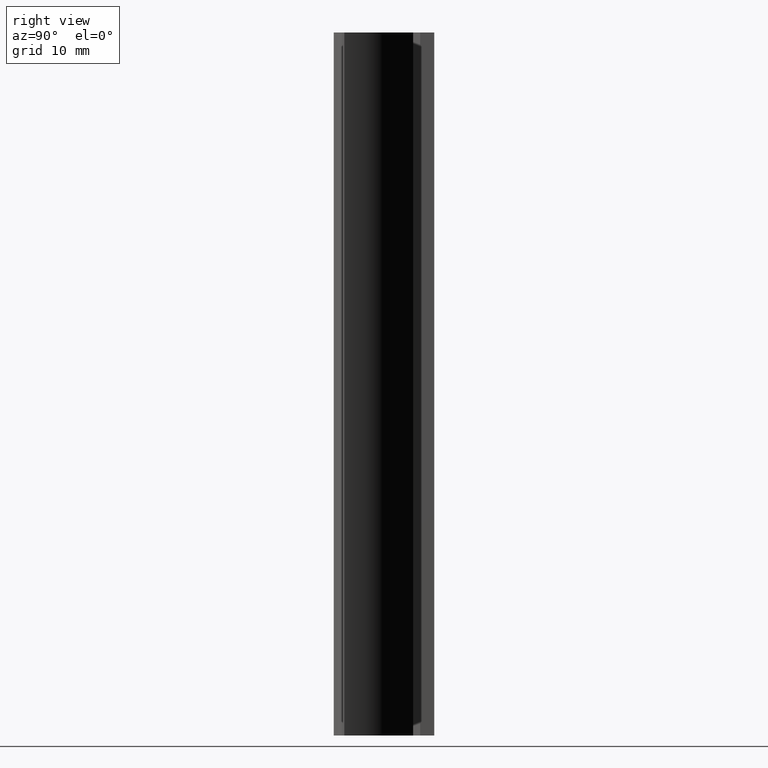
[diagram: clean part render]
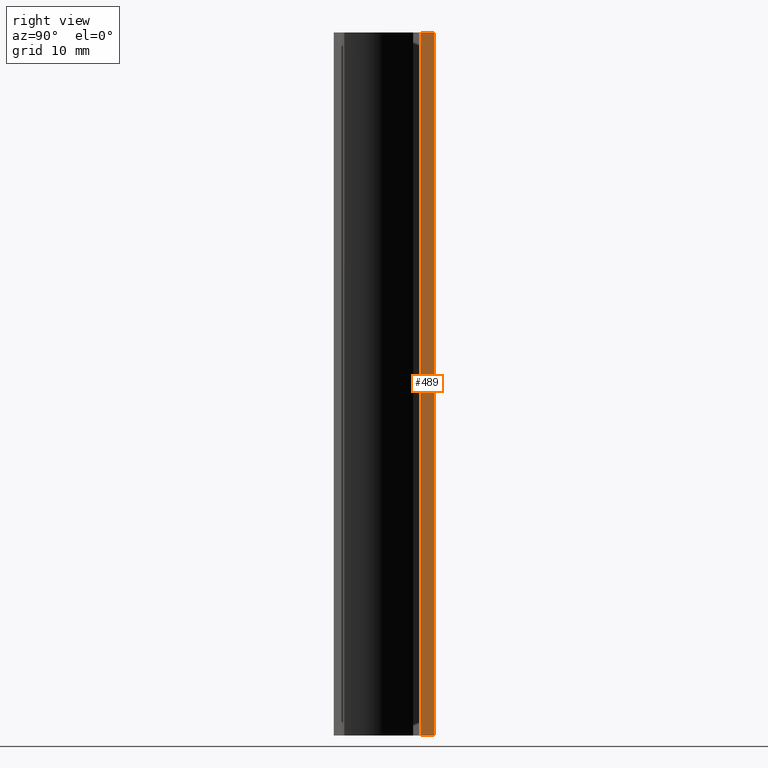
[diagram: same view with one face highlighted and labeled with its STEP entity id]
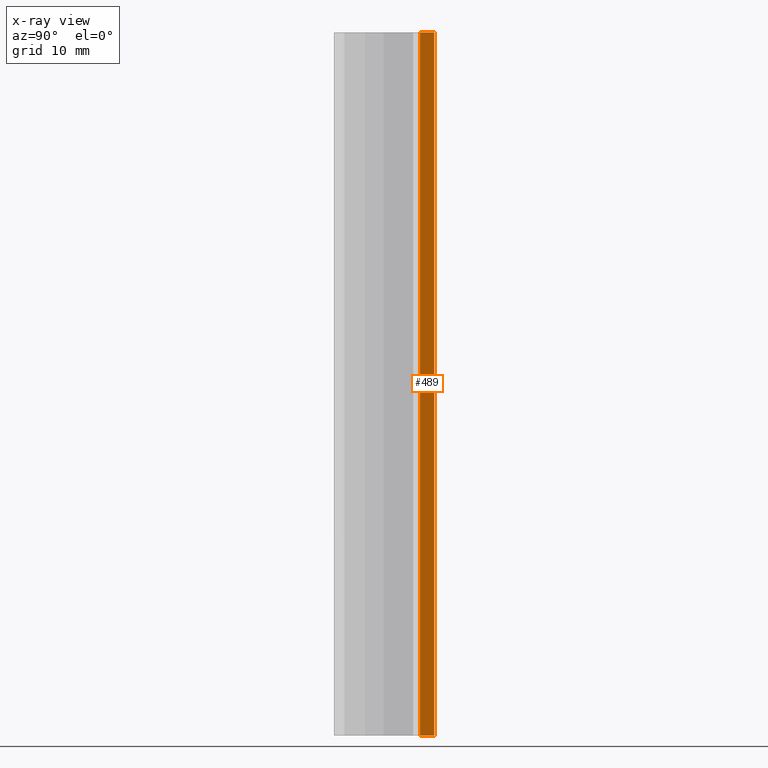
[diagram: x-ray of the same camera — body ghosted, the highlighted face saturated]
A machine part, right view. The second image highlights one B-rep face of the part: STEP entity #489.
The next image is the same camera in x-ray: the body ghosted, the highlighted face saturated — about 0% of this face is hidden behind the body in this view.
In plain terms, the highlighted planar face has unit normal (1, 0, 0).
Its self-contained STEP definition (entity closure, byte-faithful):
#431=CARTESIAN_POINT('',(0.500000000014552,11.000000000013188,0.0));
#432=VERTEX_POINT('',#431);
#440=CARTESIAN_POINT('',(0.500000000014552,11.000000000013188,100.0));
#441=VERTEX_POINT('',#440);
#442=CARTESIAN_POINT('',(0.500000000014552,11.000000000013188,0.0));
#443=DIRECTION('',(0.0,0.0,1.0));
#444=VECTOR('',#443,100.0);
#445=LINE('',#442,#444);
#446=EDGE_CURVE('',#432,#441,#445,.T.);
#459=CARTESIAN_POINT('',(0.500000000014552,11.000000000013188,0.0));
#460=DIRECTION('',(1.0,7.275958E-012,0.0));
#461=DIRECTION('',(-7.275958E-012,1.0,0.0));
#462=AXIS2_PLACEMENT_3D('',#459,#460,#461);
#463=PLANE('',#462);
#464=CARTESIAN_POINT('',(0.500000000000000,12.999999999999886,0.0));
#465=VERTEX_POINT('',#464);
#466=CARTESIAN_POINT('',(0.500000000014552,11.000000000013188,0.0));
#467=DIRECTION('',(-7.275958E-012,1.0,0.0));
#468=VECTOR('',#467,1.999999999986699);
#469=LINE('',#466,#468);
#470=EDGE_CURVE('',#432,#465,#469,.T.);
#471=ORIENTED_EDGE('',*,*,#470,.T.);
#472=CARTESIAN_POINT('',(0.500000000000000,12.999999999999886,100.0));
#473=VERTEX_POINT('',#472);
#474=CARTESIAN_POINT('',(0.500000000000000,12.999999999999886,0.0));
#475=DIRECTION('',(0.0,0.0,1.0));
#476=VECTOR('',#475,100.0);
#477=LINE('',#474,#476);
#478=EDGE_CURVE('',#465,#473,#477,.T.);
#479=ORIENTED_EDGE('',*,*,#478,.T.);
#480=CARTESIAN_POINT('',(0.500000000014552,11.000000000013188,100.0));
#481=DIRECTION('',(-7.275958E-012,1.0,0.0));
#482=VECTOR('',#481,1.999999999986699);
#483=LINE('',#480,#482);
#484=EDGE_CURVE('',#441,#473,#483,.T.);
#485=ORIENTED_EDGE('',*,*,#484,.F.);
#486=ORIENTED_EDGE('',*,*,#446,.F.);
#487=EDGE_LOOP('',(#471,#479,#485,#486));
#488=FACE_OUTER_BOUND('',#487,.T.);
#489=ADVANCED_FACE('',(#488),#463,.T.);